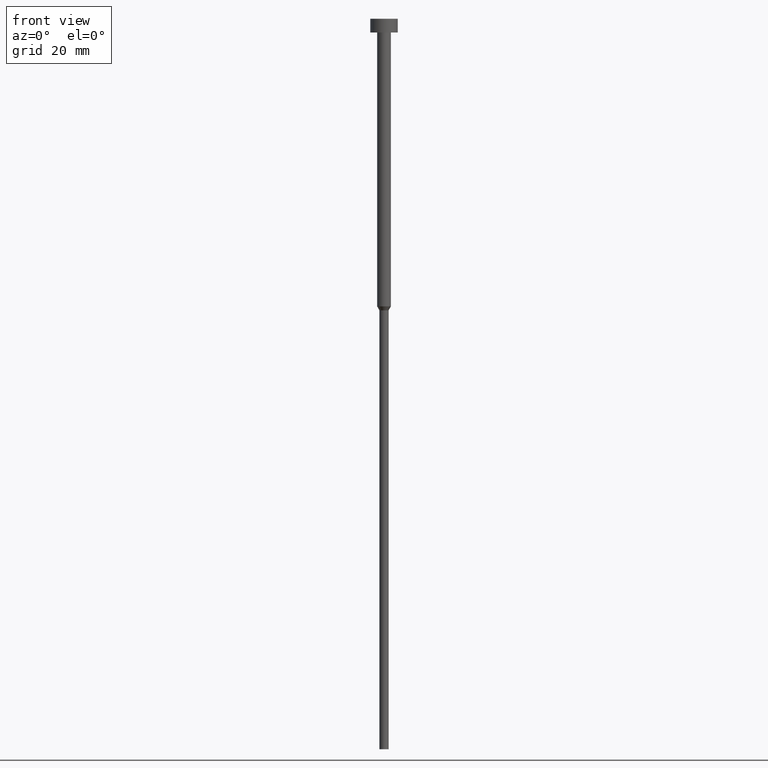
[diagram: clean part render]
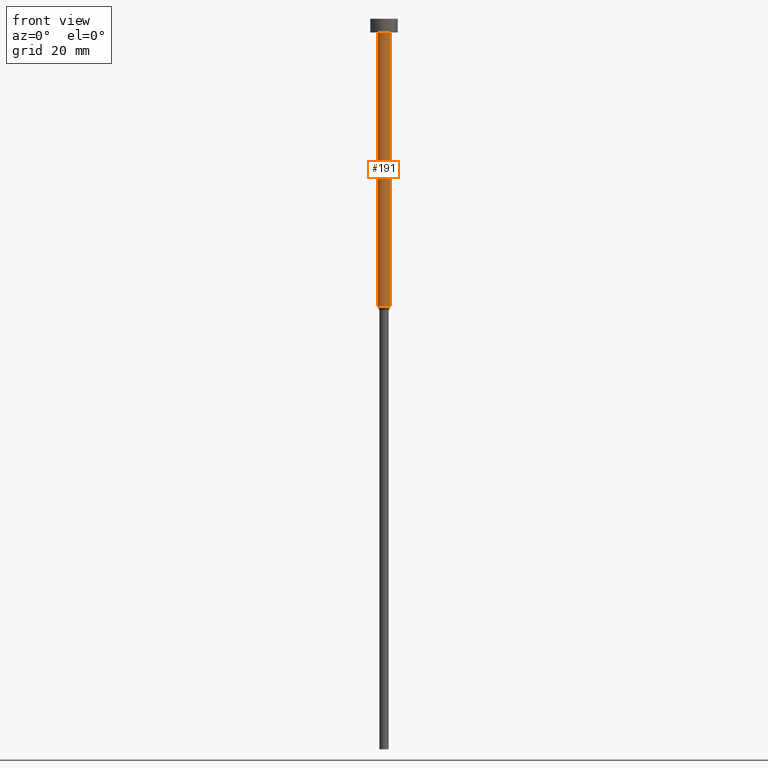
[diagram: same view with one face highlighted and labeled with its STEP entity id]
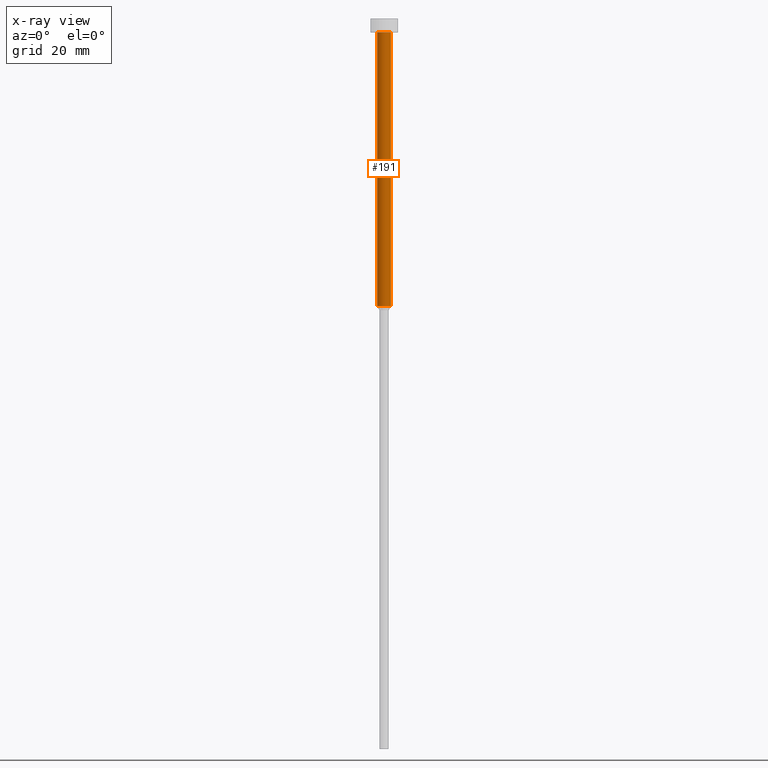
[diagram: x-ray of the same camera — body ghosted, the highlighted face saturated]
A machine part, front view. The second image highlights one B-rep face of the part: STEP entity #191.
The next image is the same camera in x-ray: the body ghosted, the highlighted face saturated — about 0% of this face is hidden behind the body in this view.
In plain terms, the highlighted cylindrical surface (edge-blend (fillet) strip) has radius 1.5 mm, axis along (-0, -0, 1).
Its self-contained STEP definition (entity closure, byte-faithful):
#4 = AXIS2_PLACEMENT_3D ( 'NONE', #125, #95, #208 ) ;
#27 = ORIENTED_EDGE ( 'NONE', *, *, #163, .T. ) ;
#36 = EDGE_CURVE ( 'NONE', #171, #300, #93, .T. ) ;
#41 = CARTESIAN_POINT ( 'NONE',  ( -1.500000000000000000, 1.836970198721029934E-16, -63.00000000000000000 ) ) ;
#44 = CIRCLE ( 'NONE', #96, 1.500000000000000000 ) ;
#60 = VERTEX_POINT ( 'NONE', #286 ) ;
#70 = CARTESIAN_POINT ( 'NONE',  ( 0.000000000000000000, 0.000000000000000000, 0.000000000000000000 ) ) ;
#93 = LINE ( 'NONE', #280, #341 ) ;
#95 = DIRECTION ( 'NONE',  ( -0.000000000000000000, -0.000000000000000000, 1.000000000000000000 ) ) ;
#96 = AXIS2_PLACEMENT_3D ( 'NONE', #134, #107, #192 ) ;
#100 = DIRECTION ( 'NONE',  ( -0.000000000000000000, -0.000000000000000000, 1.000000000000000000 ) ) ;
#103 = LINE ( 'NONE', #187, #252 ) ;
#107 = DIRECTION ( 'NONE',  ( -0.000000000000000000, -0.000000000000000000, 1.000000000000000000 ) ) ;
#125 = CARTESIAN_POINT ( 'NONE',  ( 0.000000000000000000, 0.000000000000000000, -63.00000000000000000 ) ) ;
#133 = DIRECTION ( 'NONE',  ( -0.000000000000000000, -0.000000000000000000, 1.000000000000000000 ) ) ;
#134 = CARTESIAN_POINT ( 'NONE',  ( 0.000000000000000000, 0.000000000000000000, -3.000000000000000888 ) ) ;
#158 = CARTESIAN_POINT ( 'NONE',  ( 1.500000000000000000, 0.000000000000000000, -3.000000000000000888 ) ) ;
#163 = EDGE_CURVE ( 'NONE', #355, #171, #313, .T. ) ;
#169 = ORIENTED_EDGE ( 'NONE', *, *, #249, .F. ) ;
#170 = AXIS2_PLACEMENT_3D ( 'NONE', #70, #100, #190 ) ;
#171 = VERTEX_POINT ( 'NONE', #235 ) ;
#178 = DIRECTION ( 'NONE',  ( -0.000000000000000000, -0.000000000000000000, 1.000000000000000000 ) ) ;
#187 = CARTESIAN_POINT ( 'NONE',  ( -1.500000000000000000, 1.836970198721029934E-16, 0.000000000000000000 ) ) ;
#190 = DIRECTION ( 'NONE',  ( 1.000000000000000000, 0.000000000000000000, 0.000000000000000000 ) ) ;
#191 = ADVANCED_FACE ( 'NONE', ( #211 ), #312, .T. ) ;
#192 = DIRECTION ( 'NONE',  ( 1.000000000000000000, 0.000000000000000000, 0.000000000000000000 ) ) ;
#208 = DIRECTION ( 'NONE',  ( 1.000000000000000000, 0.000000000000000000, 0.000000000000000000 ) ) ;
#211 = FACE_OUTER_BOUND ( 'NONE', #330, .T. ) ;
#229 = ORIENTED_EDGE ( 'NONE', *, *, #263, .F. ) ;
#235 = CARTESIAN_POINT ( 'NONE',  ( 1.500000000000000000, 0.000000000000000000, -63.00000000000000000 ) ) ;
#249 = EDGE_CURVE ( 'NONE', #60, #300, #44, .T. ) ;
#252 = VECTOR ( 'NONE', #133, 1000.000000000000000 ) ;
#263 = EDGE_CURVE ( 'NONE', #355, #60, #103, .T. ) ;
#280 = CARTESIAN_POINT ( 'NONE',  ( 1.500000000000000000, 0.000000000000000000, 0.000000000000000000 ) ) ;
#286 = CARTESIAN_POINT ( 'NONE',  ( -1.500000000000000000, 1.836970198721029934E-16, -3.000000000000000888 ) ) ;
#300 = VERTEX_POINT ( 'NONE', #158 ) ;
#304 = ORIENTED_EDGE ( 'NONE', *, *, #36, .T. ) ;
#312 = CYLINDRICAL_SURFACE ( 'NONE', #170, 1.500000000000000000 ) ;
#313 = CIRCLE ( 'NONE', #4, 1.500000000000000000 ) ;
#330 = EDGE_LOOP ( 'NONE', ( #229, #27, #304, #169 ) ) ;
#341 = VECTOR ( 'NONE', #178, 1000.000000000000000 ) ;
#355 = VERTEX_POINT ( 'NONE', #41 ) ;